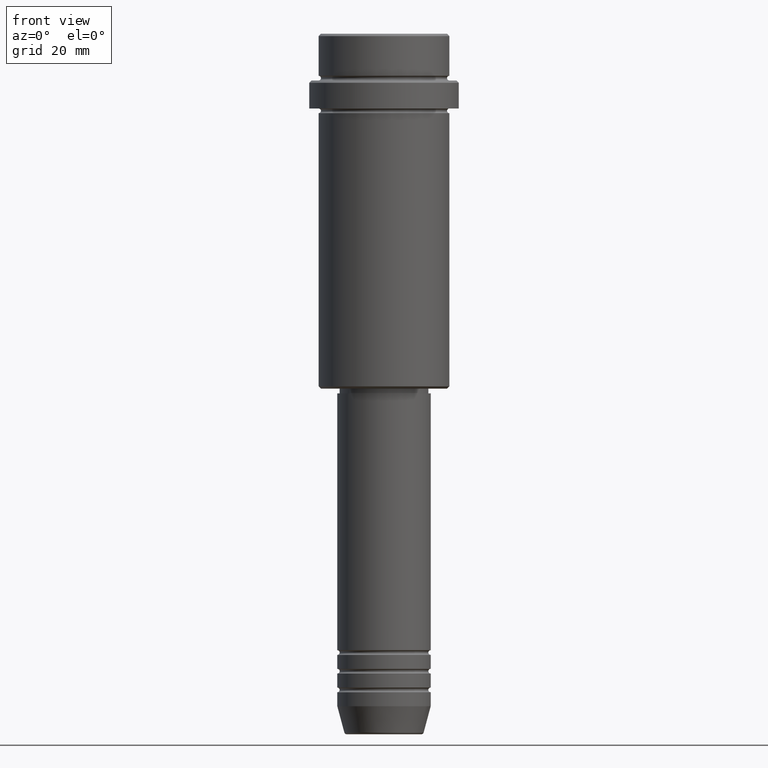
[diagram: clean part render]
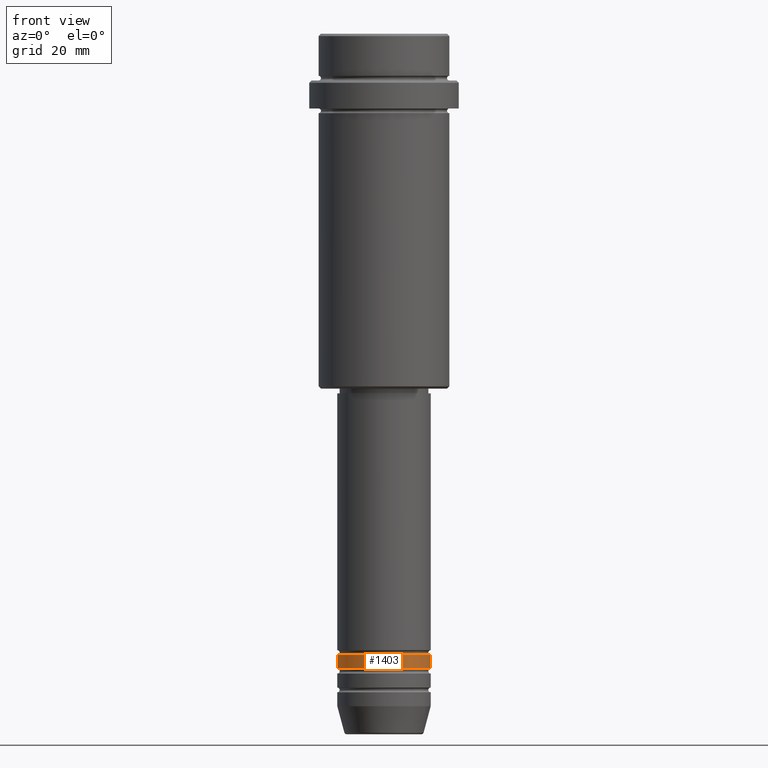
[diagram: same view with one face highlighted and labeled with its STEP entity id]
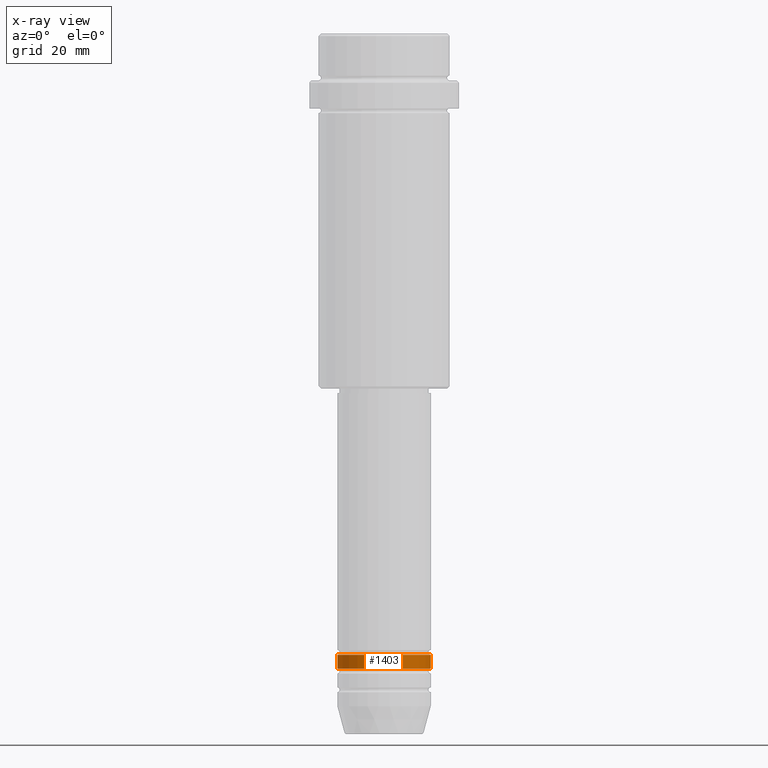
[diagram: x-ray of the same camera — body ghosted, the highlighted face saturated]
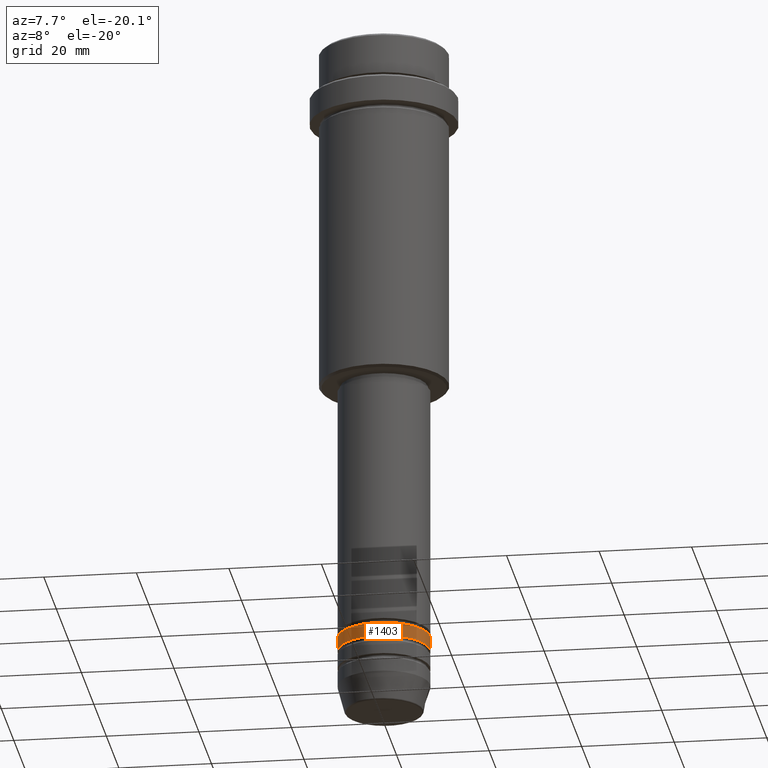
[diagram: same view with one face highlighted and labeled with its STEP entity id]
A machine part, front view. The second image highlights one B-rep face of the part: STEP entity #1403.
The next image is the same camera in x-ray: the body ghosted, the highlighted face saturated — about 0% of this face is hidden behind the body in this view.
A second angle (auxiliary view) of the same face is appended — the face is thin or edge-on in the first view.
In plain terms, the highlighted cylindrical surface (partial cylindrical patch) has radius 10 mm, axis along (-0, -0, 1).
Its self-contained STEP definition (entity closure, byte-faithful):
#65 = DIRECTION ( 'NONE',  ( -0.000000000000000000, -0.000000000000000000, 1.000000000000000000 ) ) ;
#68 = CYLINDRICAL_SURFACE ( 'NONE', #123, 10.00000000000000000 ) ;
#89 = CARTESIAN_POINT ( 'NONE',  ( 0.000000000000000000, 0.000000000000000000, -135.9999999999998863 ) ) ;
#123 = AXIS2_PLACEMENT_3D ( 'NONE', #500, #150, #591 ) ;
#129 = ORIENTED_EDGE ( 'NONE', *, *, #1331, .T. ) ;
#143 = VECTOR ( 'NONE', #727, 1000.000000000000000 ) ;
#150 = DIRECTION ( 'NONE',  ( -0.000000000000000000, -0.000000000000000000, 1.000000000000000000 ) ) ;
#171 = FACE_OUTER_BOUND ( 'NONE', #305, .T. ) ;
#305 = EDGE_LOOP ( 'NONE', ( #311, #627, #129, #986 ) ) ;
#311 = ORIENTED_EDGE ( 'NONE', *, *, #993, .F. ) ;
#318 = AXIS2_PLACEMENT_3D ( 'NONE', #457, #541, #428 ) ;
#338 = EDGE_CURVE ( 'NONE', #1012, #945, #1011, .T. ) ;
#385 = DIRECTION ( 'NONE',  ( 1.000000000000000000, 0.000000000000000000, 0.000000000000000000 ) ) ;
#428 = DIRECTION ( 'NONE',  ( 1.000000000000000000, 0.000000000000000000, 0.000000000000000000 ) ) ;
#457 = CARTESIAN_POINT ( 'NONE',  ( 0.000000000000000000, 0.000000000000000000, -132.9999999999998863 ) ) ;
#461 = CIRCLE ( 'NONE', #1260, 10.00000000000000000 ) ;
#495 = LINE ( 'NONE', #1148, #584 ) ;
#500 = CARTESIAN_POINT ( 'NONE',  ( 0.000000000000000000, 0.000000000000000000, 0.000000000000000000 ) ) ;
#541 = DIRECTION ( 'NONE',  ( -0.000000000000000000, -0.000000000000000000, 1.000000000000000000 ) ) ;
#584 = VECTOR ( 'NONE', #1002, 1000.000000000000000 ) ;
#591 = DIRECTION ( 'NONE',  ( 1.000000000000000000, 0.000000000000000000, 0.000000000000000000 ) ) ;
#613 = EDGE_CURVE ( 'NONE', #1126, #657, #461, .T. ) ;
#627 = ORIENTED_EDGE ( 'NONE', *, *, #613, .T. ) ;
#637 = CARTESIAN_POINT ( 'NONE',  ( 10.00000000000000000, 0.000000000000000000, -135.9999999999998863 ) ) ;
#657 = VERTEX_POINT ( 'NONE', #637 ) ;
#727 = DIRECTION ( 'NONE',  ( -0.000000000000000000, -0.000000000000000000, 1.000000000000000000 ) ) ;
#839 = LINE ( 'NONE', #1036, #143 ) ;
#945 = VERTEX_POINT ( 'NONE', #1231 ) ;
#986 = ORIENTED_EDGE ( 'NONE', *, *, #338, .F. ) ;
#993 = EDGE_CURVE ( 'NONE', #1126, #1012, #839, .T. ) ;
#1002 = DIRECTION ( 'NONE',  ( -0.000000000000000000, -0.000000000000000000, 1.000000000000000000 ) ) ;
#1011 = CIRCLE ( 'NONE', #318, 10.00000000000000000 ) ;
#1012 = VERTEX_POINT ( 'NONE', #1050 ) ;
#1036 = CARTESIAN_POINT ( 'NONE',  ( -10.00000000000000000, 1.224646799147353256E-15, 0.000000000000000000 ) ) ;
#1050 = CARTESIAN_POINT ( 'NONE',  ( -10.00000000000000000, 1.224646799147353256E-15, -132.9999999999998863 ) ) ;
#1126 = VERTEX_POINT ( 'NONE', #1367 ) ;
#1148 = CARTESIAN_POINT ( 'NONE',  ( 10.00000000000000000, 0.000000000000000000, 0.000000000000000000 ) ) ;
#1231 = CARTESIAN_POINT ( 'NONE',  ( 10.00000000000000000, 0.000000000000000000, -132.9999999999998863 ) ) ;
#1260 = AXIS2_PLACEMENT_3D ( 'NONE', #89, #65, #385 ) ;
#1331 = EDGE_CURVE ( 'NONE', #657, #945, #495, .T. ) ;
#1367 = CARTESIAN_POINT ( 'NONE',  ( -10.00000000000000000, 1.224646799147353256E-15, -135.9999999999998863 ) ) ;
#1403 = ADVANCED_FACE ( 'NONE', ( #171 ), #68, .T. ) ;